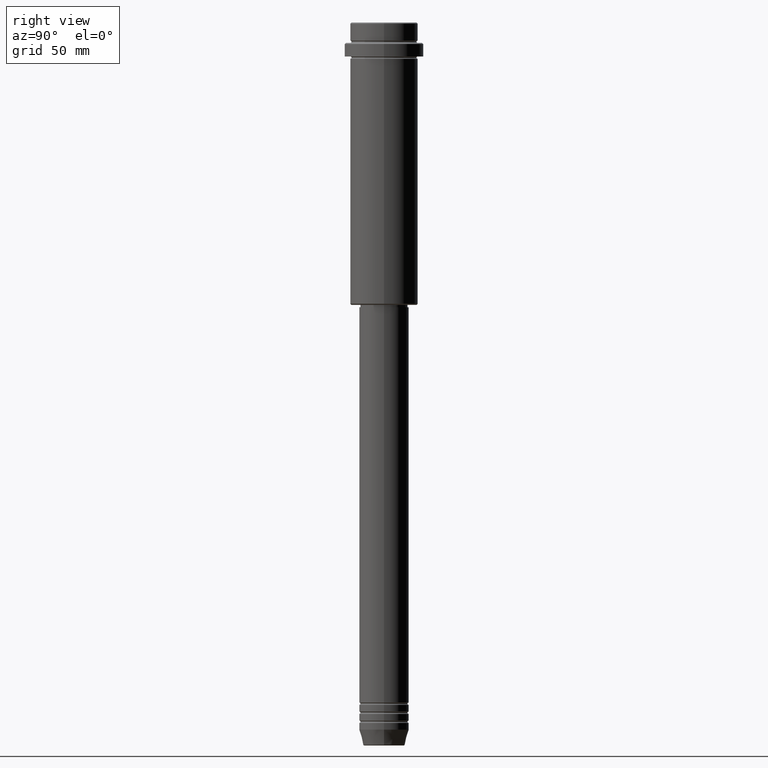
[diagram: clean part render]
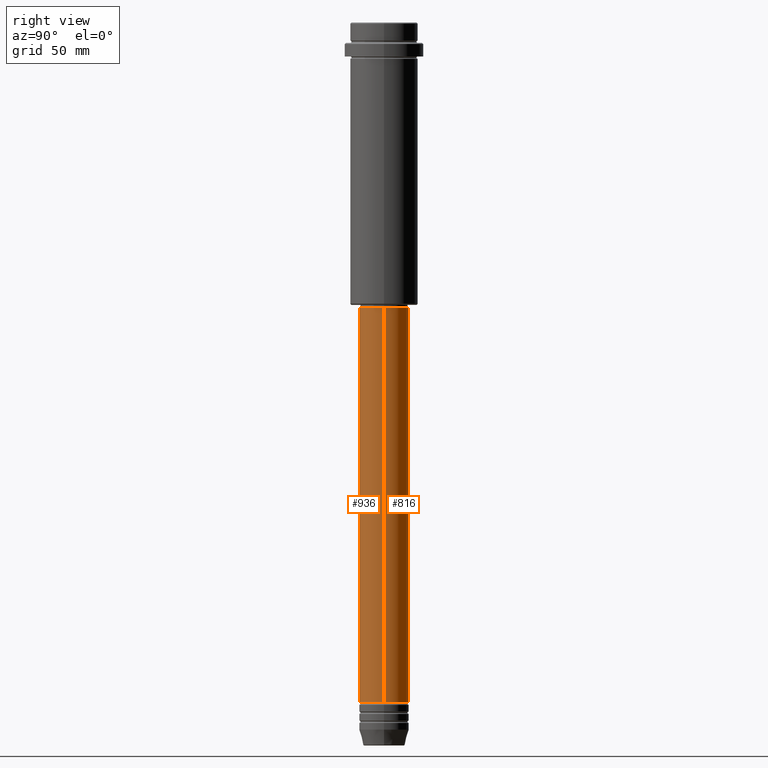
[diagram: same view with one multi-face feature highlighted, each face labeled with its STEP entity id]
A machine part, right view. The highlighted faces form ONE feature: a constant-radius fillet chain: 2 tangent blend faces with common blend radius 11 mm. The faces share edges in the B-rep.
Their STEP definitions:
[1] entity #816 (Cylinder):
#19 = CIRCLE ( 'NONE', #1143, 10.99999999999999822 ) ;
#45 = CARTESIAN_POINT ( 'NONE',  ( 0.000000000000000000, 0.000000000000000000, -125.9999999999999147 ) ) ;
#82 = DIRECTION ( 'NONE',  ( 1.000000000000000000, 0.000000000000000000, 0.000000000000000000 ) ) ;
#139 = VERTEX_POINT ( 'NONE', #477 ) ;
#182 = DIRECTION ( 'NONE',  ( 1.000000000000000000, 0.000000000000000000, 0.000000000000000000 ) ) ;
#189 = DIRECTION ( 'NONE',  ( -0.000000000000000000, -0.000000000000000000, 1.000000000000000000 ) ) ;
#203 = DIRECTION ( 'NONE',  ( -0.000000000000000000, -0.000000000000000000, 1.000000000000000000 ) ) ;
#206 = CARTESIAN_POINT ( 'NONE',  ( -11.00000000000000000, 1.347111479062088405E-15, -300.9999999999998863 ) ) ;
#268 = DIRECTION ( 'NONE',  ( -0.000000000000000000, -0.000000000000000000, 1.000000000000000000 ) ) ;
#293 = FACE_OUTER_BOUND ( 'NONE', #750, .T. ) ;
#394 = ORIENTED_EDGE ( 'NONE', *, *, #628, .T. ) ;
#404 = VERTEX_POINT ( 'NONE', #206 ) ;
#408 = CIRCLE ( 'NONE', #1053, 11.00000000000000000 ) ;
#477 = CARTESIAN_POINT ( 'NONE',  ( 10.99999999999999822, 0.000000000000000000, -125.9999999999999147 ) ) ;
#480 = DIRECTION ( 'NONE',  ( 1.000000000000000000, 0.000000000000000000, 0.000000000000000000 ) ) ;
#482 = DIRECTION ( 'NONE',  ( -0.000000000000000000, -0.000000000000000000, 1.000000000000000000 ) ) ;
#497 = CARTESIAN_POINT ( 'NONE',  ( -11.00000000000000000, 1.347111479062088405E-15, 0.000000000000000000 ) ) ;
#542 = CYLINDRICAL_SURFACE ( 'NONE', #1191, 11.00000000000000000 ) ;
#576 = VERTEX_POINT ( 'NONE', #1258 ) ;
#587 = ORIENTED_EDGE ( 'NONE', *, *, #731, .T. ) ;
#601 = LINE ( 'NONE', #818, #630 ) ;
#622 = EDGE_CURVE ( 'NONE', #1381, #139, #601, .T. ) ;
#628 = EDGE_CURVE ( 'NONE', #404, #576, #910, .T. ) ;
#630 = VECTOR ( 'NONE', #1035, 1000.000000000000000 ) ;
#704 = CARTESIAN_POINT ( 'NONE',  ( 11.00000000000000000, 0.000000000000000000, -300.9999999999998863 ) ) ;
#731 = EDGE_CURVE ( 'NONE', #1381, #404, #408, .T. ) ;
#747 = CARTESIAN_POINT ( 'NONE',  ( 0.000000000000000000, 0.000000000000000000, 0.000000000000000000 ) ) ;
#750 = EDGE_LOOP ( 'NONE', ( #587, #394, #1055, #1249 ) ) ;
#816 = ADVANCED_FACE ( 'NONE', ( #293 ), #542, .T. ) ;
#818 = CARTESIAN_POINT ( 'NONE',  ( 11.00000000000000000, 0.000000000000000000, 0.000000000000000000 ) ) ;
#910 = LINE ( 'NONE', #497, #1026 ) ;
#945 = CARTESIAN_POINT ( 'NONE',  ( 0.000000000000000000, 0.000000000000000000, -300.9999999999998863 ) ) ;
#1026 = VECTOR ( 'NONE', #482, 1000.000000000000000 ) ;
#1035 = DIRECTION ( 'NONE',  ( -0.000000000000000000, -0.000000000000000000, 1.000000000000000000 ) ) ;
#1053 = AXIS2_PLACEMENT_3D ( 'NONE', #945, #203, #182 ) ;
#1055 = ORIENTED_EDGE ( 'NONE', *, *, #1090, .F. ) ;
#1090 = EDGE_CURVE ( 'NONE', #139, #576, #19, .T. ) ;
#1143 = AXIS2_PLACEMENT_3D ( 'NONE', #45, #268, #480 ) ;
#1191 = AXIS2_PLACEMENT_3D ( 'NONE', #747, #189, #82 ) ;
#1249 = ORIENTED_EDGE ( 'NONE', *, *, #622, .F. ) ;
#1258 = CARTESIAN_POINT ( 'NONE',  ( -10.99999999999999822, 1.347111479062088207E-15, -125.9999999999999147 ) ) ;
#1381 = VERTEX_POINT ( 'NONE', #704 ) ;
[2] entity #936 (Cylinder):
#139 = VERTEX_POINT ( 'NONE', #477 ) ;
#205 = AXIS2_PLACEMENT_3D ( 'NONE', #297, #751, #650 ) ;
#206 = CARTESIAN_POINT ( 'NONE',  ( -11.00000000000000000, 1.347111479062088405E-15, -300.9999999999998863 ) ) ;
#228 = DIRECTION ( 'NONE',  ( 1.000000000000000000, 0.000000000000000000, 0.000000000000000000 ) ) ;
#297 = CARTESIAN_POINT ( 'NONE',  ( 0.000000000000000000, 0.000000000000000000, -125.9999999999999147 ) ) ;
#302 = CARTESIAN_POINT ( 'NONE',  ( 0.000000000000000000, 0.000000000000000000, -300.9999999999998863 ) ) ;
#404 = VERTEX_POINT ( 'NONE', #206 ) ;
#444 = FACE_OUTER_BOUND ( 'NONE', #462, .T. ) ;
#457 = CYLINDRICAL_SURFACE ( 'NONE', #559, 11.00000000000000000 ) ;
#462 = EDGE_LOOP ( 'NONE', ( #1315, #1154, #949, #890 ) ) ;
#477 = CARTESIAN_POINT ( 'NONE',  ( 10.99999999999999822, 0.000000000000000000, -125.9999999999999147 ) ) ;
#482 = DIRECTION ( 'NONE',  ( -0.000000000000000000, -0.000000000000000000, 1.000000000000000000 ) ) ;
#497 = CARTESIAN_POINT ( 'NONE',  ( -11.00000000000000000, 1.347111479062088405E-15, 0.000000000000000000 ) ) ;
#523 = DIRECTION ( 'NONE',  ( 1.000000000000000000, 0.000000000000000000, 0.000000000000000000 ) ) ;
#559 = AXIS2_PLACEMENT_3D ( 'NONE', #786, #1092, #228 ) ;
#561 = CIRCLE ( 'NONE', #205, 10.99999999999999822 ) ;
#576 = VERTEX_POINT ( 'NONE', #1258 ) ;
#601 = LINE ( 'NONE', #818, #630 ) ;
#622 = EDGE_CURVE ( 'NONE', #1381, #139, #601, .T. ) ;
#628 = EDGE_CURVE ( 'NONE', #404, #576, #910, .T. ) ;
#630 = VECTOR ( 'NONE', #1035, 1000.000000000000000 ) ;
#650 = DIRECTION ( 'NONE',  ( 1.000000000000000000, 0.000000000000000000, 0.000000000000000000 ) ) ;
#704 = CARTESIAN_POINT ( 'NONE',  ( 11.00000000000000000, 0.000000000000000000, -300.9999999999998863 ) ) ;
#719 = AXIS2_PLACEMENT_3D ( 'NONE', #302, #1378, #523 ) ;
#751 = DIRECTION ( 'NONE',  ( -0.000000000000000000, -0.000000000000000000, 1.000000000000000000 ) ) ;
#786 = CARTESIAN_POINT ( 'NONE',  ( 0.000000000000000000, 0.000000000000000000, 0.000000000000000000 ) ) ;
#818 = CARTESIAN_POINT ( 'NONE',  ( 11.00000000000000000, 0.000000000000000000, 0.000000000000000000 ) ) ;
#890 = ORIENTED_EDGE ( 'NONE', *, *, #1280, .F. ) ;
#910 = LINE ( 'NONE', #497, #1026 ) ;
#936 = ADVANCED_FACE ( 'NONE', ( #444 ), #457, .T. ) ;
#949 = ORIENTED_EDGE ( 'NONE', *, *, #622, .T. ) ;
#1026 = VECTOR ( 'NONE', #482, 1000.000000000000000 ) ;
#1035 = DIRECTION ( 'NONE',  ( -0.000000000000000000, -0.000000000000000000, 1.000000000000000000 ) ) ;
#1092 = DIRECTION ( 'NONE',  ( -0.000000000000000000, -0.000000000000000000, 1.000000000000000000 ) ) ;
#1154 = ORIENTED_EDGE ( 'NONE', *, *, #1209, .T. ) ;
#1209 = EDGE_CURVE ( 'NONE', #404, #1381, #1323, .T. ) ;
#1258 = CARTESIAN_POINT ( 'NONE',  ( -10.99999999999999822, 1.347111479062088207E-15, -125.9999999999999147 ) ) ;
#1280 = EDGE_CURVE ( 'NONE', #576, #139, #561, .T. ) ;
#1315 = ORIENTED_EDGE ( 'NONE', *, *, #628, .F. ) ;
#1323 = CIRCLE ( 'NONE', #719, 11.00000000000000000 ) ;
#1378 = DIRECTION ( 'NONE',  ( -0.000000000000000000, -0.000000000000000000, 1.000000000000000000 ) ) ;
#1381 = VERTEX_POINT ( 'NONE', #704 ) ;